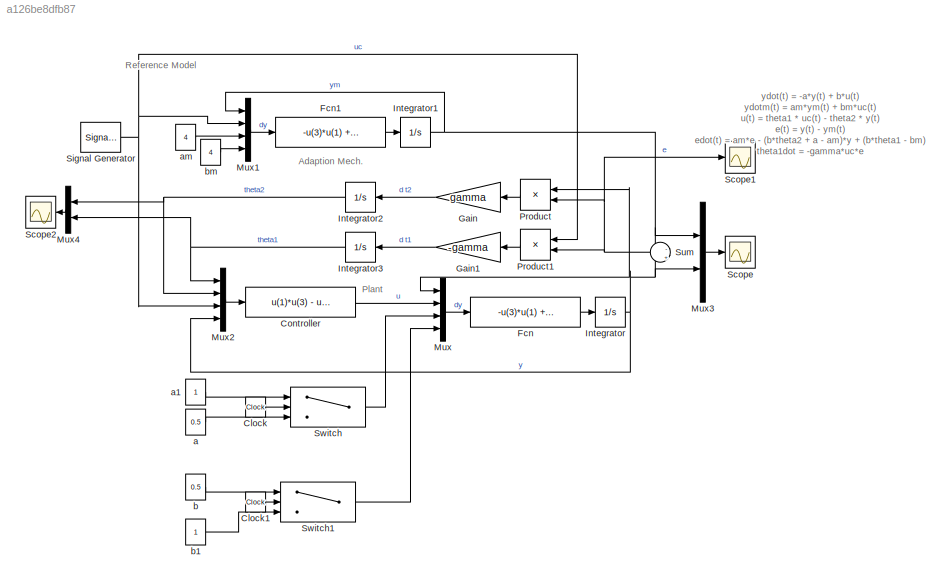
MODEL slx_a126be8dfb87
KIND model
CONFIG AbsTol = auto
CONFIG EnableMultiTasking = on
CONFIG FixedStep = 0.01
CONFIG InitFcn = gamma = 10;
CONFIG MaxStep = auto
CONFIG MinStep = auto
CONFIG RelTol = 1e-3
CONFIG SampleTimeConstraint = Unconstrained
CONFIG Solver = FixedStepAuto
CONFIG SolverName = FixedStepAuto
CONFIG StartTime = 0.0
CONFIG StopTime = 500
BLOCK [Clock] Clock
BLOCK [Clock] Clock1
BLOCK [Fcn] Controller
  Expr = u(1)*u(3) - u(2)*u(4)
BLOCK [Fcn] Fcn
  Expr = -u(3)*u(1)  + u(4)*u(2)
BLOCK [Fcn] Fcn1
  Expr = -u(3)*u(1)  + u(4)*u(2)
BLOCK [Gain] Gain
  Gain = gamma
  OutDataTypeStr = Inherit: Inherit via internal rule
  ParamDataTypeStr = Inherit: Inherit via internal rule
  SaturateOnIntegerOverflow = off
BLOCK [Gain] Gain1
  Gain = -gamma
  OutDataTypeStr = Inherit: Inherit via internal rule
  ParamDataTypeStr = Inherit: Inherit via internal rule
  SaturateOnIntegerOverflow = off
BLOCK [Integrator] Integrator
  InitialCondition = randn
  Ports = [1, 1]
BLOCK [Integrator] Integrator1
  Ports = [1, 1]
BLOCK [Integrator] Integrator2
  Ports = [1, 1]
BLOCK [Integrator] Integrator3
  Ports = [1, 1]
BLOCK [Mux] Mux
  DisplayOption = bar
  Ports = [4, 1]
BLOCK [Mux] Mux1
  DisplayOption = bar
  Ports = [4, 1]
BLOCK [Mux] Mux2
  DisplayOption = bar
  Ports = [4, 1]
BLOCK [Mux] Mux3
  DisplayOption = bar
  Inputs = 2
  Ports = [2, 1]
BLOCK [Mux] Mux4
  DisplayOption = bar
  Inputs = 2
  Ports = [2, 1]
BLOCK [Product] Product
  InputSameDT = off
  OutDataTypeStr = Inherit: Inherit via internal rule
  Ports = [2, 1]
  RndMeth = Floor
  SaturateOnIntegerOverflow = off
BLOCK [Product] Product1
  InputSameDT = off
  OutDataTypeStr = Inherit: Inherit via internal rule
  Ports = [2, 1]
  RndMeth = Floor
  SaturateOnIntegerOverflow = off
BLOCK [Scope] Scope
  Floating = off
  NumInputPorts = 1
  Ports = [1]
  ScopeSpecificationString = Simulink.scopes.TimeScopeBlockCfg('CurrentConfiguration', extmgr.ConfigurationSet(extmgr.Configuration('Core','General UI',true),extmgr.Configuration('Core','Source UI',true),extmgr.Configuration('Sources','WiredSimulink',true),extmgr.Configuration('Visuals','Time Domain',true,'SerializedDisplays',{struct('MinYLimReal','-1.89125','MaxYLimReal','1.46697','YLabelReal','','MinYLimMag','0.00000','MaxY...<+1396ch>
BLOCK [Scope] Scope1
  Floating = off
  NumInputPorts = 1
  Ports = [1]
  ScopeSpecificationString = Simulink.scopes.TimeScopeBlockCfg('CurrentConfiguration', extmgr.ConfigurationSet(extmgr.Configuration('Core','General UI',true),extmgr.Configuration('Core','Source UI',true),extmgr.Configuration('Sources','WiredSimulink',true,'DataLoggingVariableName','ScopeData1'),extmgr.Configuration('Visuals','Time Domain',true,'SerializedDisplays',{struct('MinYLimReal','-1.07415','MaxYLimReal','4.11145','YLab...<+1394ch>
BLOCK [Scope] Scope2
  Floating = off
  NumInputPorts = 1
  Ports = [1]
  ScopeSpecificationString = Simulink.scopes.TimeScopeBlockCfg('CurrentConfiguration', extmgr.ConfigurationSet(extmgr.Configuration('Core','General UI',true),extmgr.Configuration('Core','Source UI',true),extmgr.Configuration('Sources','WiredSimulink',true,'DataLoggingVariableName','ScopeData2'),extmgr.Configuration('Visuals','Time Domain',true,'SerializedDisplays',{struct('MinYLimReal','-1.02059','MaxYLimReal','9.18532','YLab...<+1445ch>
BLOCK [SignalGenerator] Signal Generator
  Frequency = 0.05
  Ports = [0, 1]
  WaveForm = square
BLOCK [Sum] Sum
  IconShape = round
  InputSameDT = off
  Inputs = -|+
  OutDataTypeStr = Inherit: Inherit via internal rule
  Ports = [2, 1]
  SaturateOnIntegerOverflow = off
BLOCK [Switch] Switch
  Criteria = u2 > Threshold
  InputSameDT = off
  SaturateOnIntegerOverflow = off
  Threshold = 150
BLOCK [Switch] Switch1
  Criteria = u2 > Threshold
  InputSameDT = off
  SaturateOnIntegerOverflow = off
  Threshold = 350
BLOCK [Constant] a
  Value = 0.5
BLOCK [Constant] a1
BLOCK [Constant] am
  Value = 4
BLOCK [Constant] b
  Value = 0.5
BLOCK [Constant] b1
BLOCK [Constant] bm
  Value = 4
ANNOTATION (root): Adaption Mech.
ANNOTATION (root): Plant
ANNOTATION (root): Reference Model
ANNOTATION (root): ydot(t) = -a*y(t) + b*u(t) ydotm(t) = am*ym(t) + bm*uc(t) u(t) = theta1 * uc(t) - theta2 * y(t) e(t) = y(t) - ym(t) edot(t) = am*e - (b*theta2 + a - am)*y + (b*theta1 - bm) theta1dot = -gamma*uc*e theta2dot = -gamma*y*e
LINE Clock1:1 -> Switch1:2
LINE Clock:1 -> Switch:2
LINE Controller:1 -> Mux:2
LINE Fcn1:1 -> Integrator1:1
LINE Fcn:1 -> Integrator:1
LINE Gain1:1 -> Integrator3:1
LINE Gain:1 -> Integrator2:1
NET Integrator1:1 -> Mux1:1, Mux3:1, Sum:1
NET Integrator2:1 -> Mux2:2, Mux4:1
NET Integrator3:1 -> Mux2:1, Mux4:2
NET Integrator:1 -> Mux2:4, Mux3:2, Mux:1, Product:1, Sum:2
LINE Mux1:1 -> Fcn1:1
LINE Mux2:1 -> Controller:1
LINE Mux3:1 -> Scope:1
LINE Mux4:1 -> Scope2:1
LINE Mux:1 -> Fcn:1
LINE Product1:1 -> Gain1:1
LINE Product:1 -> Gain:1
NET Signal Generator:1 -> Mux1:2, Mux2:3, Product1:1
NET Sum:1 -> Product1:2, Product:2, Scope1:1
LINE Switch1:1 -> Mux:4
LINE Switch:1 -> Mux:3
LINE a1:1 -> Switch:1
LINE a:1 -> Switch:3
LINE am:1 -> Mux1:3
LINE b1:1 -> Switch1:3
LINE b:1 -> Switch1:1
LINE bm:1 -> Mux1:4
note: NET lines group one-source signal fan-out (src -> all destinations, sorted); 1:1 wires keep LINE
